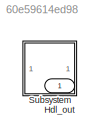
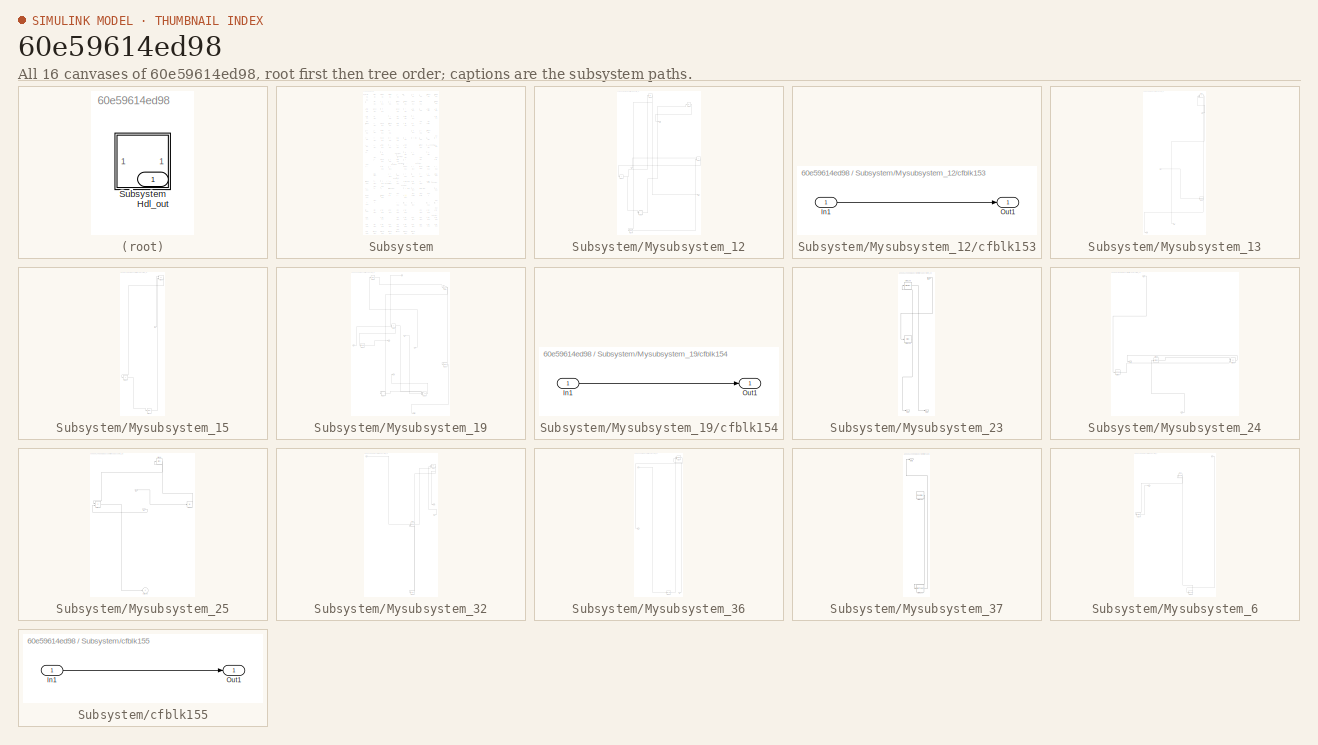
[diagram: thumbnail index - all 16 canvases of the model, root first then tree order]
MODEL slx_60e59614ed98
KIND model
CONFIG AbsTol = auto
CONFIG EnableMultiTasking = off
CONFIG FixedStep = auto
CONFIG MaxStep = auto
CONFIG MinStep = auto
CONFIG RelTol = 1e-3
CONFIG SampleTimeConstraint = Unconstrained
CONFIG SolverName = VariableStepAuto
CONFIG StartTime = 0.0
CONFIG StopTime = 10.0
BLOCK [Outport] Hdl_out
  OutDataTypeStr = uint8
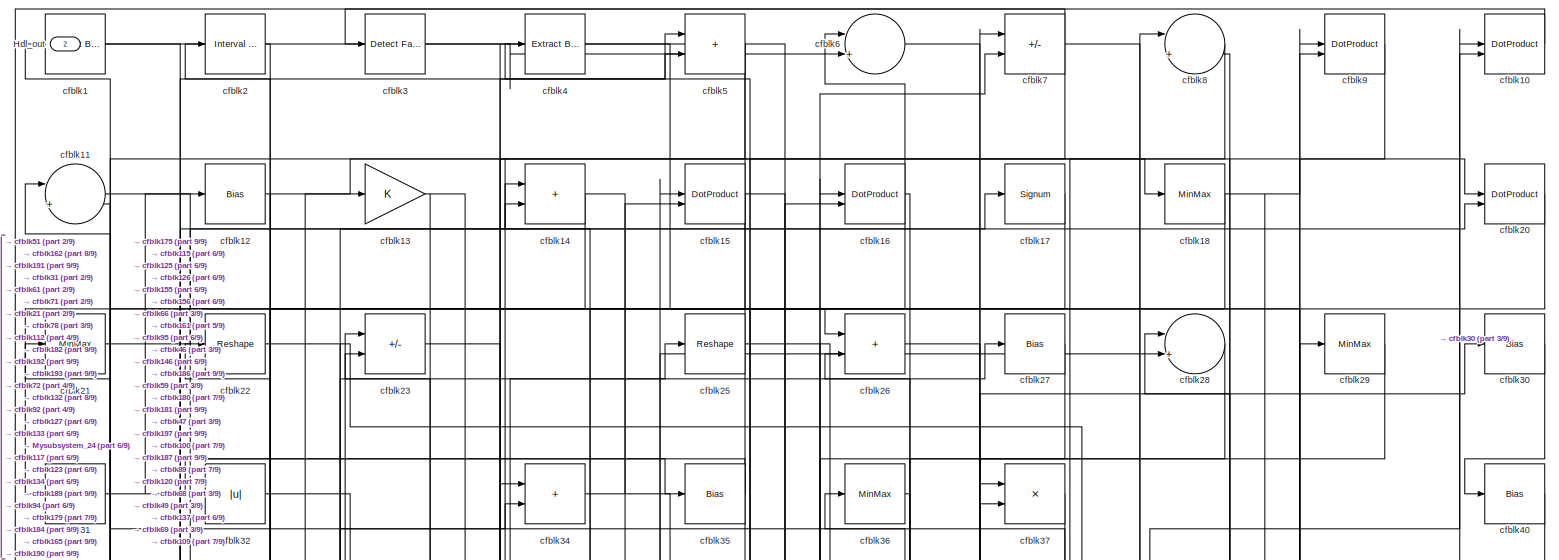
[diagram: Subsystem - part 1/9, full width, top band]
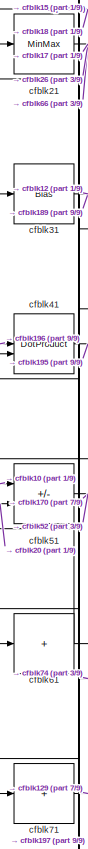
[diagram: Subsystem - part 2/9, top left region]
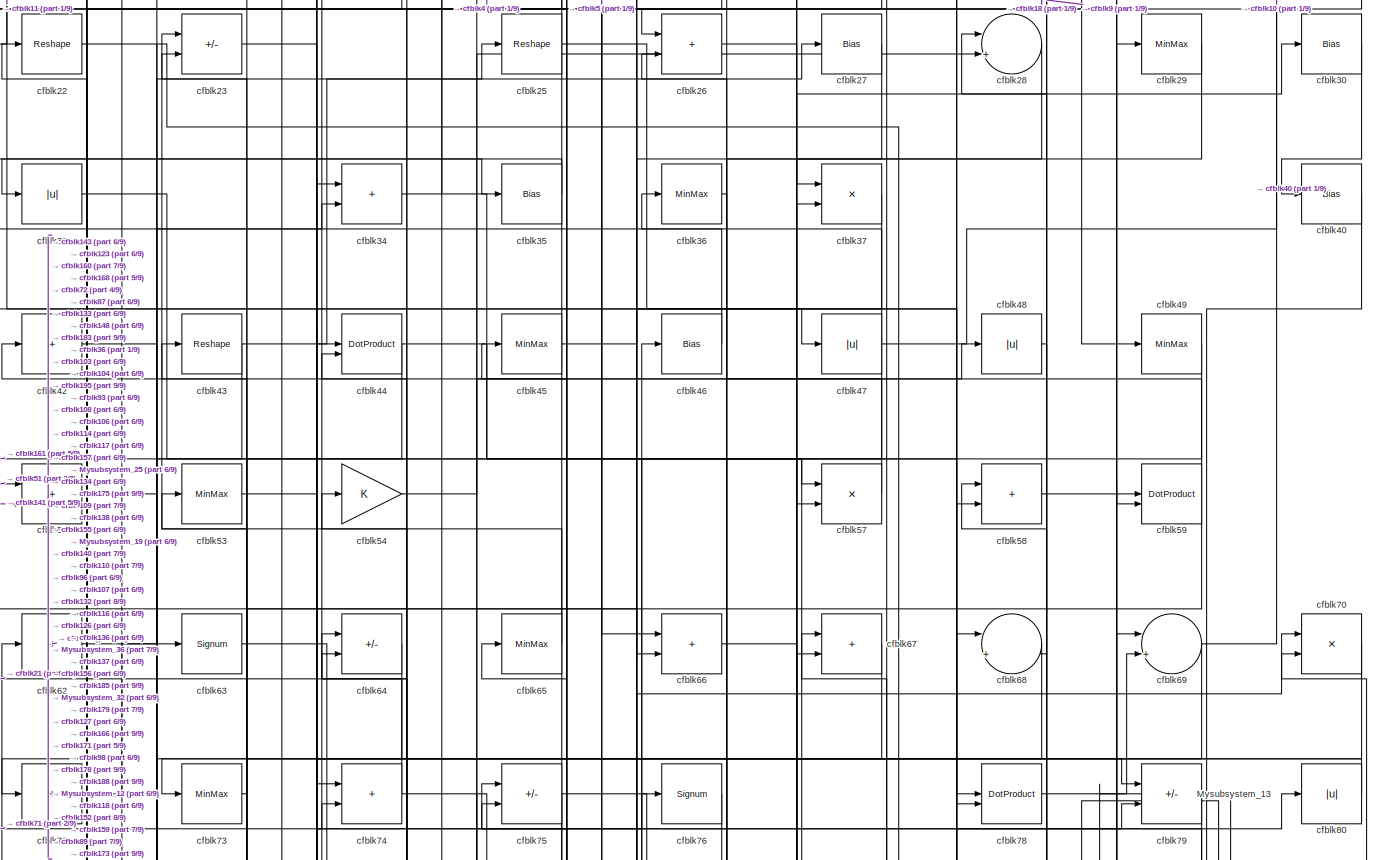
[diagram: Subsystem - part 3/9, full width, top band]
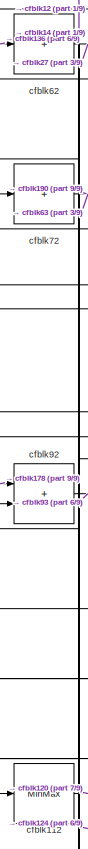
[diagram: Subsystem - part 4/9, middle left region]
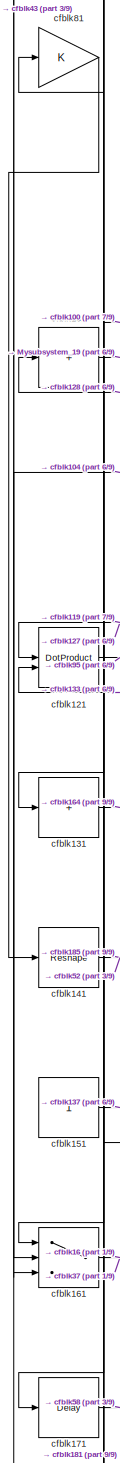
[diagram: Subsystem - part 5/9, middle left region]
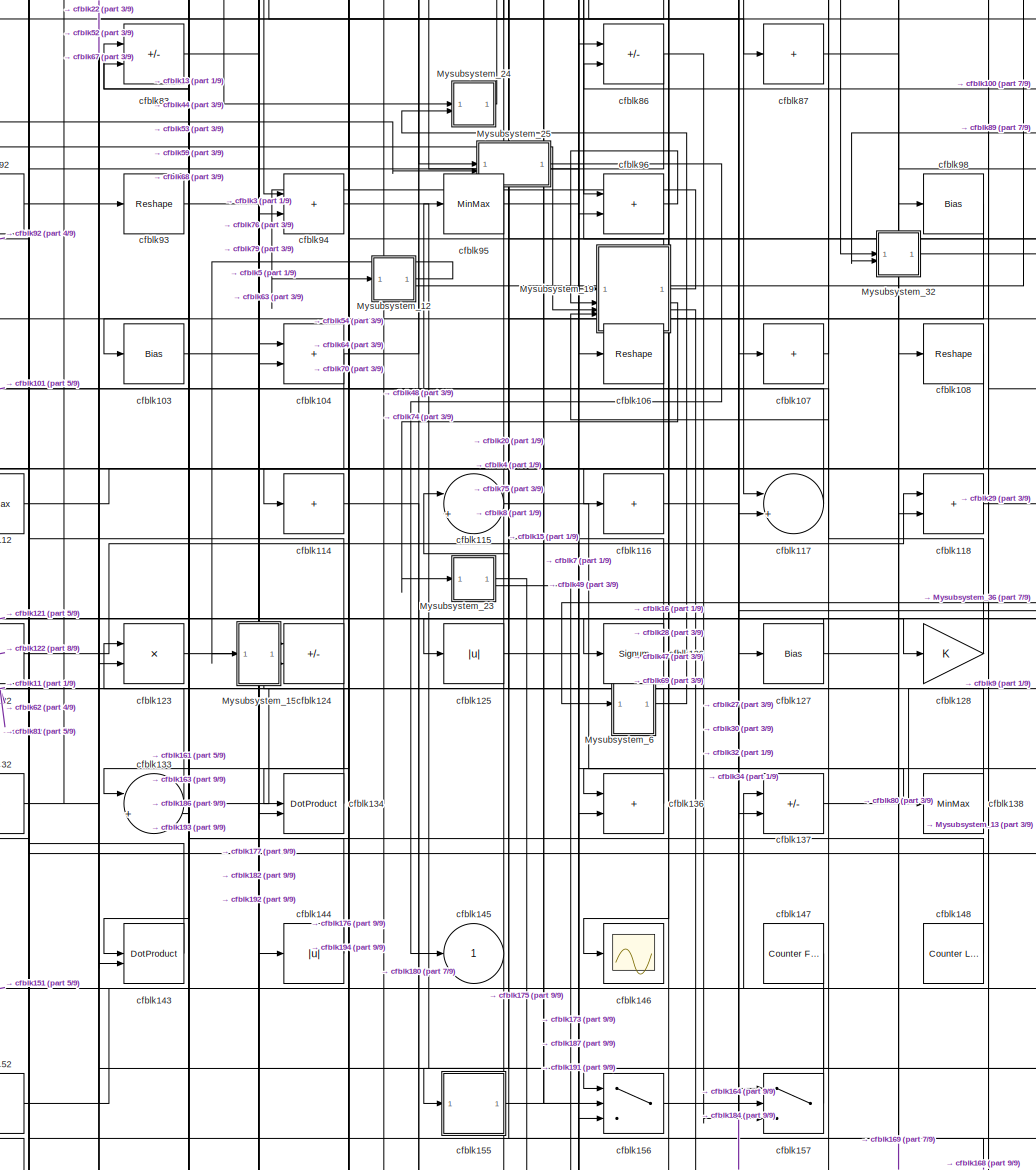
[diagram: Subsystem - part 6/9, central region]
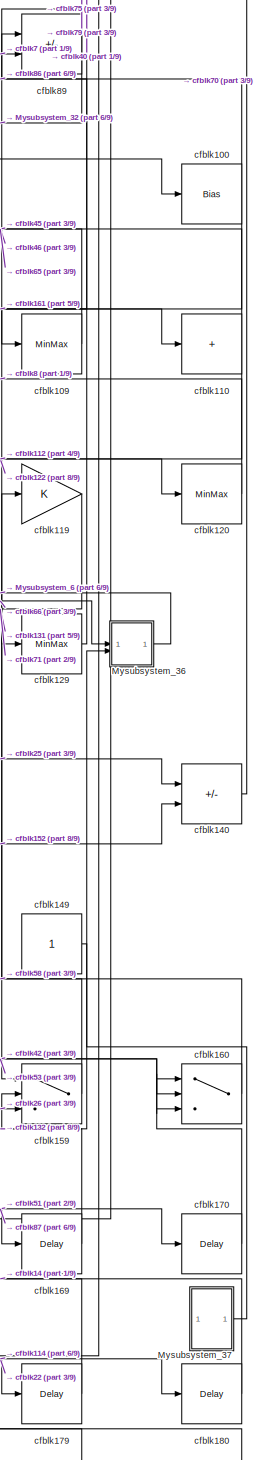
[diagram: Subsystem - part 7/9, middle right region]
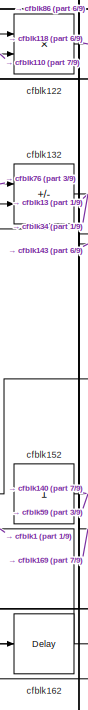
[diagram: Subsystem - part 8/9, bottom left region]
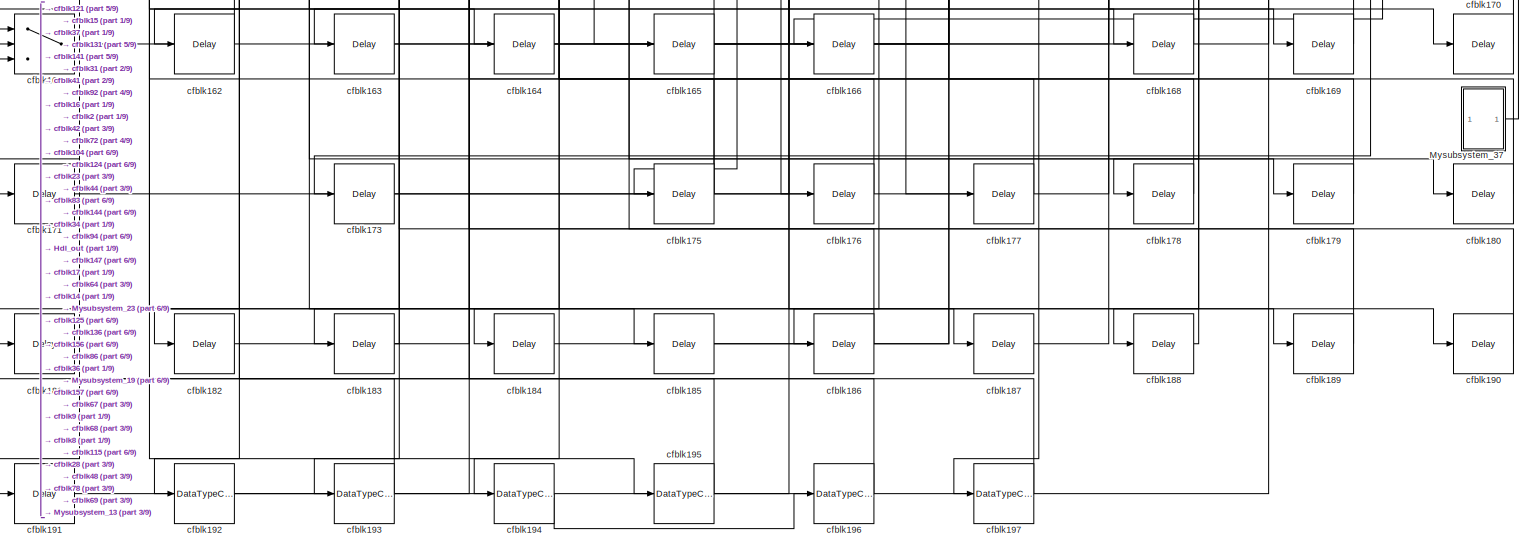
[diagram: Subsystem - part 9/9, full width, bottom band]
BLOCK [SubSystem] Subsystem
BLOCK [Outport] Subsystem/Hdl_out
  OutDataTypeStr = uint8
  Port = 2
BLOCK [SubSystem] Subsystem/Mysubsystem_12
  RTWFcnName = Mysubsystem_12
  RTWFcnNameOpts = User specified
  RTWFileNameOpts = Use function name
  RTWSystemCode = Reusable function
  TreatAsAtomicUnit = on
BLOCK [Inport] Subsystem/Mysubsystem_12/In1
BLOCK [Outport] Subsystem/Mysubsystem_12/Out1
BLOCK [Outport] Subsystem/Mysubsystem_12/Out2
  Port = 2
BLOCK [Sum] Subsystem/Mysubsystem_12/cfblk111
  IconShape = rectangular
  Inputs = +
BLOCK [SubSystem] Subsystem/Mysubsystem_12/cfblk153
  LibrarySourceBlock = hdlsllib/Ports &\nSubsystems/Subsystem
BLOCK [Inport] Subsystem/Mysubsystem_12/cfblk153/In1
BLOCK [Outport] Subsystem/Mysubsystem_12/cfblk153/Out1
BLOCK [Delay] Subsystem/Mysubsystem_12/cfblk172
  InputPortMap = u0
  SampleTime = 1
BLOCK [Abs] Subsystem/Mysubsystem_12/cfblk24
  SaturateOnIntegerOverflow = off
BLOCK [Abs] Subsystem/Mysubsystem_12/cfblk38
  SaturateOnIntegerOverflow = off
BLOCK [Sum] Subsystem/Mysubsystem_12/cfblk99
  IconShape = rectangular
BLOCK [SubSystem] Subsystem/Mysubsystem_13
  RTWFcnName = Mysubsystem_13
  RTWFcnNameOpts = User specified
  RTWFileNameOpts = Use function name
  RTWSystemCode = Reusable function
  TreatAsAtomicUnit = on
BLOCK [Inport] Subsystem/Mysubsystem_13/In1
BLOCK [Inport] Subsystem/Mysubsystem_13/In2
  Port = 2
BLOCK [Outport] Subsystem/Mysubsystem_13/Out1
BLOCK [Outport] Subsystem/Mysubsystem_13/Out2
  Port = 2
BLOCK [Reshape] Subsystem/Mysubsystem_13/cfblk139
BLOCK [Sum] Subsystem/Mysubsystem_13/cfblk19
  IconShape = rectangular
BLOCK [SubSystem] Subsystem/Mysubsystem_15
  RTWFcnName = Mysubsystem_15
  RTWFcnNameOpts = User specified
  RTWFileNameOpts = Use function name
  RTWSystemCode = Reusable function
  TreatAsAtomicUnit = on
BLOCK [Inport] Subsystem/Mysubsystem_15/In1
BLOCK [Sum] Subsystem/Mysubsystem_15/cfblk142
  IconShape = rectangular
  Inputs = +
BLOCK [Delay] Subsystem/Mysubsystem_15/cfblk174
  InputPortMap = u0
  SampleTime = 1
BLOCK [Sum] Subsystem/Mysubsystem_15/cfblk55
  IconShape = rectangular
  Inputs = +-
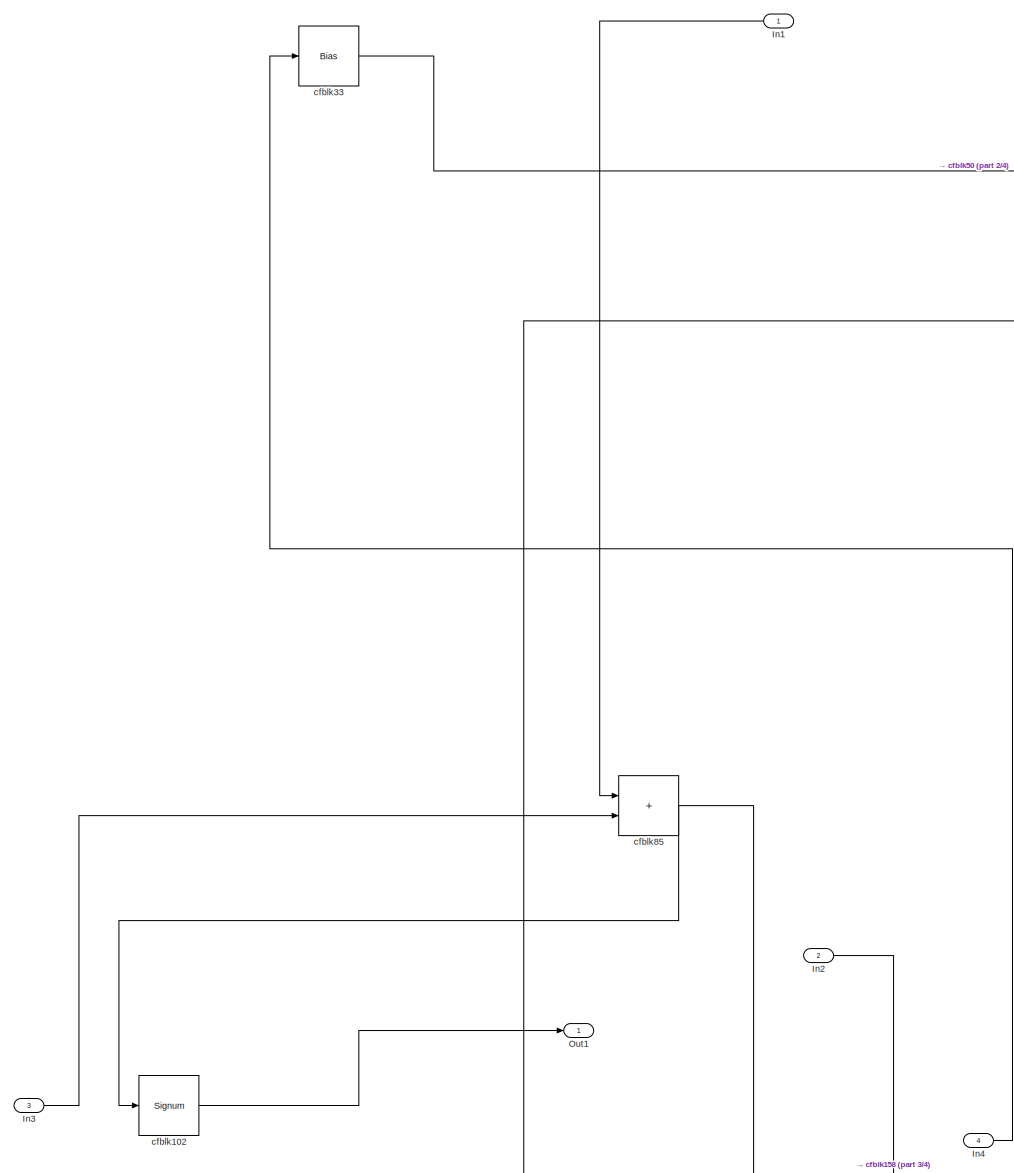
[diagram: Subsystem/Mysubsystem_19 - part 1/4, top center region]
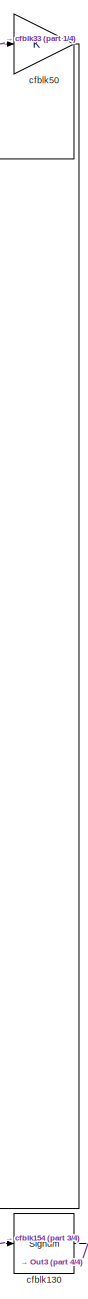
[diagram: Subsystem/Mysubsystem_19 - part 2/4, middle right region]
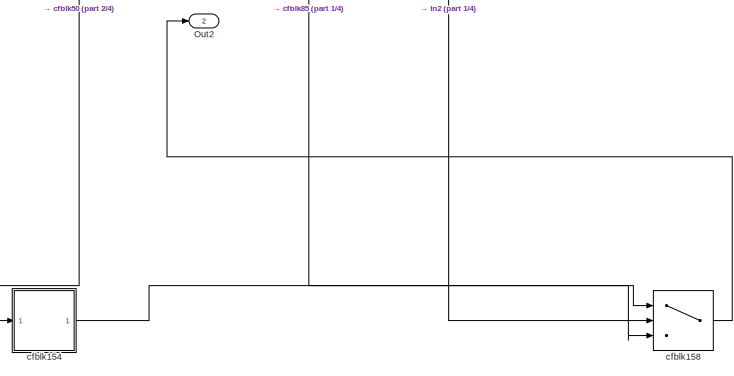
[diagram: Subsystem/Mysubsystem_19 - part 3/4, bottom center region]
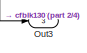
[diagram: Subsystem/Mysubsystem_19 - part 4/4, bottom center region]
BLOCK [SubSystem] Subsystem/Mysubsystem_19
  RTWFcnName = Mysubsystem_19
  RTWFcnNameOpts = User specified
  RTWFileNameOpts = Use function name
  RTWSystemCode = Reusable function
  TreatAsAtomicUnit = on
BLOCK [Inport] Subsystem/Mysubsystem_19/In1
BLOCK [Inport] Subsystem/Mysubsystem_19/In2
  Port = 2
BLOCK [Inport] Subsystem/Mysubsystem_19/In3
  Port = 3
BLOCK [Inport] Subsystem/Mysubsystem_19/In4
  Port = 4
BLOCK [Outport] Subsystem/Mysubsystem_19/Out1
BLOCK [Outport] Subsystem/Mysubsystem_19/Out2
  Port = 2
BLOCK [Outport] Subsystem/Mysubsystem_19/Out3
  Port = 3
BLOCK [Signum] Subsystem/Mysubsystem_19/cfblk102
BLOCK [Signum] Subsystem/Mysubsystem_19/cfblk130
BLOCK [SubSystem] Subsystem/Mysubsystem_19/cfblk154
  LibrarySourceBlock = hdlsllib/Ports &\nSubsystems/Subsystem
BLOCK [Inport] Subsystem/Mysubsystem_19/cfblk154/In1
BLOCK [Outport] Subsystem/Mysubsystem_19/cfblk154/Out1
BLOCK [Switch] Subsystem/Mysubsystem_19/cfblk158
  InputSameDT = off
  SaturateOnIntegerOverflow = off
BLOCK [Bias] Subsystem/Mysubsystem_19/cfblk33
  Bias = 0.0
  SaturateOnIntegerOverflow = off
BLOCK [Gain] Subsystem/Mysubsystem_19/cfblk50
BLOCK [Sum] Subsystem/Mysubsystem_19/cfblk85
  IconShape = rectangular
BLOCK [SubSystem] Subsystem/Mysubsystem_23
  RTWFcnName = Mysubsystem_23
  RTWFcnNameOpts = User specified
  RTWFileNameOpts = Use function name
  RTWSystemCode = Reusable function
  TreatAsAtomicUnit = on
BLOCK [Inport] Subsystem/Mysubsystem_23/In1
BLOCK [Outport] Subsystem/Mysubsystem_23/Out1
BLOCK [Outport] Subsystem/Mysubsystem_23/Out2
  Port = 2
BLOCK [MinMax] Subsystem/Mysubsystem_23/cfblk105
BLOCK [Bias] Subsystem/Mysubsystem_23/cfblk135
  Bias = 0.0
  SaturateOnIntegerOverflow = off
BLOCK [SubSystem] Subsystem/Mysubsystem_24
  RTWFcnName = Mysubsystem_24
  RTWFcnNameOpts = User specified
  RTWFileNameOpts = Use function name
  RTWSystemCode = Reusable function
  TreatAsAtomicUnit = on
BLOCK [Inport] Subsystem/Mysubsystem_24/In1
BLOCK [Inport] Subsystem/Mysubsystem_24/In2
  Port = 2
BLOCK [Outport] Subsystem/Mysubsystem_24/Out1
BLOCK [MinMax] Subsystem/Mysubsystem_24/cfblk84
BLOCK [Sum] Subsystem/Mysubsystem_24/cfblk90
  IconShape = rectangular
  Inputs = +-
BLOCK [Reshape] Subsystem/Mysubsystem_24/cfblk91
BLOCK [SubSystem] Subsystem/Mysubsystem_25
  RTWFcnName = Mysubsystem_25
  RTWFcnNameOpts = User specified
  RTWFileNameOpts = Use function name
  RTWSystemCode = Reusable function
  TreatAsAtomicUnit = on
BLOCK [Inport] Subsystem/Mysubsystem_25/In1
BLOCK [Inport] Subsystem/Mysubsystem_25/In2
  Port = 2
BLOCK [Outport] Subsystem/Mysubsystem_25/cfblk145
  VectorParamsAs1DForOutWhenUnconnected = off
BLOCK [Bias] Subsystem/Mysubsystem_25/cfblk56
  Bias = 0.0
  SaturateOnIntegerOverflow = off
BLOCK [Product] Subsystem/Mysubsystem_25/cfblk82
  Inputs = */
  RndMeth = Zero
  SaturateOnIntegerOverflow = on
BLOCK [Abs] Subsystem/Mysubsystem_25/cfblk88
  SaturateOnIntegerOverflow = off
BLOCK [SubSystem] Subsystem/Mysubsystem_32
  RTWFcnName = Mysubsystem_32
  RTWFcnNameOpts = User specified
  RTWFileNameOpts = Use function name
  RTWSystemCode = Reusable function
  TreatAsAtomicUnit = on
BLOCK [Inport] Subsystem/Mysubsystem_32/In1
BLOCK [Inport] Subsystem/Mysubsystem_32/In2
  Port = 2
BLOCK [Outport] Subsystem/Mysubsystem_32/Out1
BLOCK [Delay] Subsystem/Mysubsystem_32/cfblk167
  InputPortMap = u0
  SampleTime = 1
BLOCK [Sum] Subsystem/Mysubsystem_32/cfblk39
  IconShape = rectangular
  Inputs = +-
BLOCK [DotProduct] Subsystem/Mysubsystem_32/cfblk97
  OutDataTypeStr = Inherit: Inherit via internal rule
BLOCK [SubSystem] Subsystem/Mysubsystem_36
  RTWFcnName = Mysubsystem_36
  RTWFcnNameOpts = User specified
  RTWFileNameOpts = Use function name
  RTWSystemCode = Reusable function
  TreatAsAtomicUnit = on
BLOCK [Inport] Subsystem/Mysubsystem_36/In1
BLOCK [Inport] Subsystem/Mysubsystem_36/In2
  Port = 2
BLOCK [Outport] Subsystem/Mysubsystem_36/Out1
BLOCK [DataTypeConversion] Subsystem/Mysubsystem_36/cfblk199
  OutDataTypeStr = uint8
  RndMeth = Floor
  SaturateOnIntegerOverflow = off
BLOCK [DotProduct] Subsystem/Mysubsystem_36/cfblk60
  OutDataTypeStr = Inherit: Inherit via internal rule
BLOCK [SubSystem] Subsystem/Mysubsystem_37
  RTWFcnName = Mysubsystem_37
  RTWFcnNameOpts = User specified
  RTWFileNameOpts = Use function name
  RTWSystemCode = Reusable function
  TreatAsAtomicUnit = on
BLOCK [Outport] Subsystem/Mysubsystem_37/Out1
BLOCK [Reference] Subsystem/Mysubsystem_37/cfblk150  REF=hdlsllib/Sources/Counter
Limited
  SourceBlock = hdlsllib/Sources/Counter\nLimited
  SourceType = Counter Limited
BLOCK [DataTypeConversion] Subsystem/Mysubsystem_37/cfblk200
  OutDataTypeStr = uint8
  RndMeth = Floor
  SaturateOnIntegerOverflow = off
BLOCK [SubSystem] Subsystem/Mysubsystem_6
  RTWFcnName = Mysubsystem_6
  RTWFcnNameOpts = User specified
  RTWFileNameOpts = Use function name
  RTWSystemCode = Reusable function
  TreatAsAtomicUnit = on
BLOCK [Inport] Subsystem/Mysubsystem_6/In1
BLOCK [Outport] Subsystem/Mysubsystem_6/Out1
BLOCK [MinMax] Subsystem/Mysubsystem_6/cfblk113
BLOCK [DataTypeConversion] Subsystem/Mysubsystem_6/cfblk198
  OutDataTypeStr = uint8
  RndMeth = Floor
  SaturateOnIntegerOverflow = off
BLOCK [Reshape] Subsystem/Mysubsystem_6/cfblk77
BLOCK [Reference] Subsystem/cfblk1  REF=simulink/Logic and Bit
Operations/Extract Bits
  LibrarySourceBlock = hdlsllib/Logic and Bit\nOperations/Extract Bits
  SourceBlock = simulink/Logic and Bit\nOperations/Extract Bits
  SourceType = Extract Bits
BLOCK [DotProduct] Subsystem/cfblk10
  OutDataTypeStr = uint8
BLOCK [Bias] Subsystem/cfblk100
  Bias = 0.0
  SaturateOnIntegerOverflow = off
BLOCK [Sum] Subsystem/cfblk101
  IconShape = rectangular
  Inputs = +
  OutDataTypeStr = uint8
BLOCK [Bias] Subsystem/cfblk103
  Bias = 0.0
  SaturateOnIntegerOverflow = off
BLOCK [Sum] Subsystem/cfblk104
  IconShape = rectangular
  OutDataTypeStr = uint8
BLOCK [Reshape] Subsystem/cfblk106
BLOCK [Sum] Subsystem/cfblk107
  IconShape = rectangular
  Inputs = +
  OutDataTypeStr = uint8
BLOCK [Reshape] Subsystem/cfblk108
BLOCK [MinMax] Subsystem/cfblk109
  OutDataTypeStr = uint8
BLOCK [Sum] Subsystem/cfblk11
  Inputs = |++
  OutDataTypeStr = uint8
BLOCK [Sum] Subsystem/cfblk110
  IconShape = rectangular
  Inputs = +
  OutDataTypeStr = uint8
BLOCK [MinMax] Subsystem/cfblk112
  OutDataTypeStr = uint8
BLOCK [Sum] Subsystem/cfblk114
  IconShape = rectangular
  Inputs = +
  OutDataTypeStr = uint8
BLOCK [Sum] Subsystem/cfblk115
  Inputs = |++
  OutDataTypeStr = uint8
BLOCK [Sum] Subsystem/cfblk116
  IconShape = rectangular
  Inputs = +
  OutDataTypeStr = uint8
BLOCK [Sum] Subsystem/cfblk117
  Inputs = |++
  OutDataTypeStr = uint8
BLOCK [Sum] Subsystem/cfblk118
  IconShape = rectangular
  OutDataTypeStr = uint8
BLOCK [Gain] Subsystem/cfblk119
  OutDataTypeStr = uint8
BLOCK [Bias] Subsystem/cfblk12
  Bias = 0.0
  SaturateOnIntegerOverflow = off
BLOCK [MinMax] Subsystem/cfblk120
  OutDataTypeStr = uint8
BLOCK [DotProduct] Subsystem/cfblk121
  OutDataTypeStr = uint8
BLOCK [Product] Subsystem/cfblk122
  Inputs = */
  OutDataTypeStr = uint8
  RndMeth = Zero
  SaturateOnIntegerOverflow = on
BLOCK [Product] Subsystem/cfblk123
  Inputs = */
  OutDataTypeStr = uint8
  RndMeth = Zero
  SaturateOnIntegerOverflow = on
BLOCK [Sum] Subsystem/cfblk124
  IconShape = rectangular
  Inputs = +-
  OutDataTypeStr = uint8
BLOCK [Abs] Subsystem/cfblk125
  OutDataTypeStr = uint8
  SaturateOnIntegerOverflow = off
BLOCK [Signum] Subsystem/cfblk126
BLOCK [Bias] Subsystem/cfblk127
  Bias = 0.0
  SaturateOnIntegerOverflow = off
BLOCK [Gain] Subsystem/cfblk128
  OutDataTypeStr = uint8
BLOCK [MinMax] Subsystem/cfblk129
  OutDataTypeStr = uint8
BLOCK [Gain] Subsystem/cfblk13
  OutDataTypeStr = uint8
BLOCK [Sum] Subsystem/cfblk131
  IconShape = rectangular
  Inputs = +
  OutDataTypeStr = uint8
BLOCK [Sum] Subsystem/cfblk132
  IconShape = rectangular
  Inputs = +-
  OutDataTypeStr = uint8
BLOCK [Sum] Subsystem/cfblk133
  Inputs = |++
  OutDataTypeStr = uint8
BLOCK [DotProduct] Subsystem/cfblk134
  OutDataTypeStr = uint8
BLOCK [Sum] Subsystem/cfblk136
  IconShape = rectangular
  OutDataTypeStr = uint8
BLOCK [Sum] Subsystem/cfblk137
  IconShape = rectangular
  Inputs = +-
  OutDataTypeStr = uint8
BLOCK [MinMax] Subsystem/cfblk138
  OutDataTypeStr = uint8
BLOCK [Sum] Subsystem/cfblk14
  IconShape = rectangular
  OutDataTypeStr = uint8
BLOCK [Sum] Subsystem/cfblk140
  IconShape = rectangular
  Inputs = +-
  OutDataTypeStr = uint8
BLOCK [Reshape] Subsystem/cfblk141
BLOCK [DotProduct] Subsystem/cfblk143
  OutDataTypeStr = uint8
BLOCK [Abs] Subsystem/cfblk144
  OutDataTypeStr = uint8
  SaturateOnIntegerOverflow = off
BLOCK [Outport] Subsystem/cfblk145
  OutDataTypeStr = uint8
  VectorParamsAs1DForOutWhenUnconnected = off
BLOCK [Scope] Subsystem/cfblk146
  Floating = off
  NumInputPorts = 1
  ScopeSpecificationString = Simulink.scopes.TimeScopeBlockCfg('CurrentConfiguration', extmgr.ConfigurationSet(extmgr.Configuration('Core','General UI',true),extmgr.Configuration('Core','Source UI',true),extmgr.Configuration('Sources','WiredSimulink',true,'DataLoggingSaveFormat','Array','DataLoggingLimitDataPoints',true,'DataLoggingDecimation','1'),extmgr.Configuration('Visuals','Time Domain',true,'DisplayPropertyDefaults',st...<+829ch>
BLOCK [Reference] Subsystem/cfblk147  REF=hdlsllib/Sources/Counter
Free-Running
  SourceBlock = hdlsllib/Sources/Counter\nFree-Running
  SourceType = Counter Free-Running
BLOCK [Reference] Subsystem/cfblk148  REF=hdlsllib/Sources/Counter
Limited
  SourceBlock = hdlsllib/Sources/Counter\nLimited
  SourceType = Counter Limited
BLOCK [Constant] Subsystem/cfblk149
  OutDataTypeStr = uint8
  SampleTime = -1
BLOCK [DotProduct] Subsystem/cfblk15
  OutDataTypeStr = uint8
BLOCK [Constant] Subsystem/cfblk151
  OutDataTypeStr = uint8
  SampleTime = -1
BLOCK [Constant] Subsystem/cfblk152
  OutDataTypeStr = uint8
  SampleTime = -1
BLOCK [SubSystem] Subsystem/cfblk155
  LibrarySourceBlock = hdlsllib/Ports &\nSubsystems/Subsystem
BLOCK [Inport] Subsystem/cfblk155/In1
BLOCK [Outport] Subsystem/cfblk155/Out1
BLOCK [Switch] Subsystem/cfblk156
  InputSameDT = off
  OutDataTypeStr = uint8
  SaturateOnIntegerOverflow = off
BLOCK [Switch] Subsystem/cfblk157
  InputSameDT = off
  OutDataTypeStr = uint8
  SaturateOnIntegerOverflow = off
BLOCK [Switch] Subsystem/cfblk159
  InputSameDT = off
  OutDataTypeStr = uint8
  SaturateOnIntegerOverflow = off
BLOCK [DotProduct] Subsystem/cfblk16
  OutDataTypeStr = uint8
BLOCK [Switch] Subsystem/cfblk160
  InputSameDT = off
  OutDataTypeStr = uint8
  SaturateOnIntegerOverflow = off
BLOCK [Switch] Subsystem/cfblk161
  InputSameDT = off
  OutDataTypeStr = uint8
  SaturateOnIntegerOverflow = off
BLOCK [Delay] Subsystem/cfblk162
  InputPortMap = u0
  SampleTime = 1
BLOCK [Delay] Subsystem/cfblk163
  InputPortMap = u0
  SampleTime = 1
BLOCK [Delay] Subsystem/cfblk164
  InputPortMap = u0
  SampleTime = 1
BLOCK [Delay] Subsystem/cfblk165
  InputPortMap = u0
  SampleTime = 1
BLOCK [Delay] Subsystem/cfblk166
  InputPortMap = u0
  SampleTime = 1
BLOCK [Delay] Subsystem/cfblk168
  InputPortMap = u0
  SampleTime = 1
BLOCK [Delay] Subsystem/cfblk169
  InputPortMap = u0
  SampleTime = 1
BLOCK [Signum] Subsystem/cfblk17
BLOCK [Delay] Subsystem/cfblk170
  InputPortMap = u0
  SampleTime = 1
BLOCK [Delay] Subsystem/cfblk171
  InputPortMap = u0
  SampleTime = 1
BLOCK [Delay] Subsystem/cfblk173
  InputPortMap = u0
  SampleTime = 1
BLOCK [Delay] Subsystem/cfblk175
  InputPortMap = u0
  SampleTime = 1
BLOCK [Delay] Subsystem/cfblk176
  InputPortMap = u0
  SampleTime = 1
BLOCK [Delay] Subsystem/cfblk177
  InputPortMap = u0
  SampleTime = 1
BLOCK [Delay] Subsystem/cfblk178
  InputPortMap = u0
  SampleTime = 1
BLOCK [Delay] Subsystem/cfblk179
  InputPortMap = u0
  SampleTime = 1
BLOCK [MinMax] Subsystem/cfblk18
  OutDataTypeStr = uint8
BLOCK [Delay] Subsystem/cfblk180
  InputPortMap = u0
  SampleTime = 1
BLOCK [Delay] Subsystem/cfblk181
  InputPortMap = u0
  SampleTime = 1
BLOCK [Delay] Subsystem/cfblk182
  InputPortMap = u0
  SampleTime = 1
BLOCK [Delay] Subsystem/cfblk183
  InputPortMap = u0
  SampleTime = 1
BLOCK [Delay] Subsystem/cfblk184
  InputPortMap = u0
  SampleTime = 1
BLOCK [Delay] Subsystem/cfblk185
  InputPortMap = u0
  SampleTime = 1
BLOCK [Delay] Subsystem/cfblk186
  InputPortMap = u0
  SampleTime = 1
BLOCK [Delay] Subsystem/cfblk187
  InputPortMap = u0
  SampleTime = 1
BLOCK [Delay] Subsystem/cfblk188
  InputPortMap = u0
  SampleTime = 1
BLOCK [Delay] Subsystem/cfblk189
  InputPortMap = u0
  SampleTime = 1
BLOCK [Delay] Subsystem/cfblk190
  InputPortMap = u0
  SampleTime = 1
BLOCK [Delay] Subsystem/cfblk191
  InputPortMap = u0
  SampleTime = 1
BLOCK [DataTypeConversion] Subsystem/cfblk192
  OutDataTypeStr = uint8
  RndMeth = Floor
  SaturateOnIntegerOverflow = off
BLOCK [DataTypeConversion] Subsystem/cfblk193
  OutDataTypeStr = uint8
  RndMeth = Floor
  SaturateOnIntegerOverflow = off
BLOCK [DataTypeConversion] Subsystem/cfblk194
  OutDataTypeStr = uint8
  RndMeth = Floor
  SaturateOnIntegerOverflow = off
BLOCK [DataTypeConversion] Subsystem/cfblk195
  OutDataTypeStr = uint8
  RndMeth = Floor
  SaturateOnIntegerOverflow = off
BLOCK [DataTypeConversion] Subsystem/cfblk196
  OutDataTypeStr = uint8
  RndMeth = Floor
  SaturateOnIntegerOverflow = off
BLOCK [DataTypeConversion] Subsystem/cfblk197
  OutDataTypeStr = uint8
  RndMeth = Floor
  SaturateOnIntegerOverflow = off
BLOCK [Reference] Subsystem/cfblk2  REF=hdlsllib/Logic and Bit
Operations/Interval Test
  SourceBlock = hdlsllib/Logic and Bit\nOperations/Interval Test
  SourceType = Interval Test
BLOCK [DotProduct] Subsystem/cfblk20
  OutDataTypeStr = uint8
BLOCK [MinMax] Subsystem/cfblk21
  OutDataTypeStr = uint8
BLOCK [Reshape] Subsystem/cfblk22
BLOCK [Sum] Subsystem/cfblk23
  IconShape = rectangular
  Inputs = +-
  OutDataTypeStr = uint8
BLOCK [Reshape] Subsystem/cfblk25
BLOCK [Sum] Subsystem/cfblk26
  IconShape = rectangular
  OutDataTypeStr = uint8
BLOCK [Bias] Subsystem/cfblk27
  Bias = 0.0
  SaturateOnIntegerOverflow = off
BLOCK [Sum] Subsystem/cfblk28
  Inputs = |++
  OutDataTypeStr = uint8
BLOCK [MinMax] Subsystem/cfblk29
  OutDataTypeStr = uint8
BLOCK [Reference] Subsystem/cfblk3  REF=hdlsllib/Logic and Bit
Operations/Detect Fall
Nonpositive
  SourceBlock = hdlsllib/Logic and Bit\nOperations/Detect Fall\nNonpositive
  SourceType = Detect Fall Nonpositive
BLOCK [Bias] Subsystem/cfblk30
  Bias = 0.0
  SaturateOnIntegerOverflow = off
BLOCK [Bias] Subsystem/cfblk31
  Bias = 0.0
  SaturateOnIntegerOverflow = off
BLOCK [Abs] Subsystem/cfblk32
  OutDataTypeStr = uint8
  SaturateOnIntegerOverflow = off
BLOCK [Sum] Subsystem/cfblk34
  IconShape = rectangular
  OutDataTypeStr = uint8
BLOCK [Bias] Subsystem/cfblk35
  Bias = 0.0
  SaturateOnIntegerOverflow = off
BLOCK [MinMax] Subsystem/cfblk36
  OutDataTypeStr = uint8
BLOCK [Product] Subsystem/cfblk37
  Inputs = */
  OutDataTypeStr = uint8
  RndMeth = Zero
  SaturateOnIntegerOverflow = on
BLOCK [Reference] Subsystem/cfblk4  REF=simulink/Logic and Bit
Operations/Extract Bits
  LibrarySourceBlock = hdlsllib/Logic and Bit\nOperations/Extract Bits
  SourceBlock = simulink/Logic and Bit\nOperations/Extract Bits
  SourceType = Extract Bits
BLOCK [Bias] Subsystem/cfblk40
  Bias = 0.0
  SaturateOnIntegerOverflow = off
BLOCK [DotProduct] Subsystem/cfblk41
  OutDataTypeStr = uint8
BLOCK [Sum] Subsystem/cfblk42
  IconShape = rectangular
  Inputs = +
  OutDataTypeStr = uint8
BLOCK [Reshape] Subsystem/cfblk43
BLOCK [DotProduct] Subsystem/cfblk44
  OutDataTypeStr = uint8
BLOCK [MinMax] Subsystem/cfblk45
  OutDataTypeStr = uint8
BLOCK [Bias] Subsystem/cfblk46
  Bias = 0.0
  SaturateOnIntegerOverflow = off
BLOCK [Abs] Subsystem/cfblk47
  OutDataTypeStr = uint8
  SaturateOnIntegerOverflow = off
BLOCK [Abs] Subsystem/cfblk48
  OutDataTypeStr = uint8
  SaturateOnIntegerOverflow = off
BLOCK [MinMax] Subsystem/cfblk49
  OutDataTypeStr = uint8
BLOCK [Sum] Subsystem/cfblk5
  IconShape = rectangular
  OutDataTypeStr = uint8
BLOCK [Sum] Subsystem/cfblk51
  IconShape = rectangular
  Inputs = +-
  OutDataTypeStr = uint8
BLOCK [Sum] Subsystem/cfblk52
  IconShape = rectangular
  OutDataTypeStr = uint8
BLOCK [MinMax] Subsystem/cfblk53
  OutDataTypeStr = uint8
BLOCK [Gain] Subsystem/cfblk54
  OutDataTypeStr = uint8
BLOCK [Product] Subsystem/cfblk57
  Inputs = */
  OutDataTypeStr = uint8
  RndMeth = Zero
  SaturateOnIntegerOverflow = on
BLOCK [Sum] Subsystem/cfblk58
  IconShape = rectangular
  OutDataTypeStr = uint8
BLOCK [DotProduct] Subsystem/cfblk59
  OutDataTypeStr = uint8
BLOCK [Sum] Subsystem/cfblk6
  Inputs = |++
  OutDataTypeStr = uint8
BLOCK [Sum] Subsystem/cfblk61
  IconShape = rectangular
  Inputs = +
  OutDataTypeStr = uint8
BLOCK [Sum] Subsystem/cfblk62
  IconShape = rectangular
  Inputs = +
  OutDataTypeStr = uint8
BLOCK [Signum] Subsystem/cfblk63
BLOCK [Sum] Subsystem/cfblk64
  IconShape = rectangular
  Inputs = +-
  OutDataTypeStr = uint8
BLOCK [MinMax] Subsystem/cfblk65
  OutDataTypeStr = uint8
BLOCK [Sum] Subsystem/cfblk66
  IconShape = rectangular
  OutDataTypeStr = uint8
BLOCK [Sum] Subsystem/cfblk67
  IconShape = rectangular
  OutDataTypeStr = uint8
BLOCK [Sum] Subsystem/cfblk68
  Inputs = |++
  OutDataTypeStr = uint8
BLOCK [Sum] Subsystem/cfblk69
  Inputs = |++
  OutDataTypeStr = uint8
BLOCK [Sum] Subsystem/cfblk7
  IconShape = rectangular
  Inputs = +-
  OutDataTypeStr = uint8
BLOCK [Product] Subsystem/cfblk70
  Inputs = */
  OutDataTypeStr = uint8
  RndMeth = Zero
  SaturateOnIntegerOverflow = on
BLOCK [Sum] Subsystem/cfblk71
  IconShape = rectangular
  Inputs = +
  OutDataTypeStr = uint8
BLOCK [Sum] Subsystem/cfblk72
  IconShape = rectangular
  Inputs = +
  OutDataTypeStr = uint8
BLOCK [MinMax] Subsystem/cfblk73
  OutDataTypeStr = uint8
BLOCK [Sum] Subsystem/cfblk74
  IconShape = rectangular
  OutDataTypeStr = uint8
BLOCK [Sum] Subsystem/cfblk75
  IconShape = rectangular
  Inputs = +-
  OutDataTypeStr = uint8
BLOCK [Signum] Subsystem/cfblk76
BLOCK [DotProduct] Subsystem/cfblk78
  OutDataTypeStr = uint8
BLOCK [Sum] Subsystem/cfblk79
  IconShape = rectangular
  Inputs = +-
  OutDataTypeStr = uint8
BLOCK [Sum] Subsystem/cfblk8
  Inputs = |++
  OutDataTypeStr = uint8
BLOCK [Abs] Subsystem/cfblk80
  OutDataTypeStr = uint8
  SaturateOnIntegerOverflow = off
BLOCK [Gain] Subsystem/cfblk81
  OutDataTypeStr = uint8
BLOCK [Sum] Subsystem/cfblk83
  IconShape = rectangular
  Inputs = +-
  OutDataTypeStr = uint8
BLOCK [Sum] Subsystem/cfblk86
  IconShape = rectangular
  Inputs = +-
  OutDataTypeStr = uint8
BLOCK [Sum] Subsystem/cfblk87
  IconShape = rectangular
  Inputs = +
  OutDataTypeStr = uint8
BLOCK [Sum] Subsystem/cfblk89
  IconShape = rectangular
  Inputs = +-
  OutDataTypeStr = uint8
BLOCK [DotProduct] Subsystem/cfblk9
  OutDataTypeStr = uint8
BLOCK [Sum] Subsystem/cfblk92
  IconShape = rectangular
  OutDataTypeStr = uint8
BLOCK [Reshape] Subsystem/cfblk93
BLOCK [Sum] Subsystem/cfblk94
  IconShape = rectangular
  OutDataTypeStr = uint8
BLOCK [MinMax] Subsystem/cfblk95
  OutDataTypeStr = uint8
BLOCK [Sum] Subsystem/cfblk96
  IconShape = rectangular
  OutDataTypeStr = uint8
BLOCK [Bias] Subsystem/cfblk98
  Bias = 0.0
  SaturateOnIntegerOverflow = off
LINE Subsystem/Mysubsystem_12/In1:1 -> Subsystem/Mysubsystem_12/cfblk99:1
NET Subsystem/Mysubsystem_12/cfblk111:1 -> Subsystem/Mysubsystem_12/cfblk153:1, Subsystem/Mysubsystem_12/cfblk24:1
LINE Subsystem/Mysubsystem_12/cfblk153/In1:1 -> Subsystem/Mysubsystem_12/cfblk153/Out1:1
LINE Subsystem/Mysubsystem_12/cfblk153:1 -> Subsystem/Mysubsystem_12/cfblk38:1
LINE Subsystem/Mysubsystem_12/cfblk172:1 -> Subsystem/Mysubsystem_12/cfblk99:2
NET Subsystem/Mysubsystem_12/cfblk24:1 -> Subsystem/Mysubsystem_12/Out2:1, Subsystem/Mysubsystem_12/cfblk172:1
LINE Subsystem/Mysubsystem_12/cfblk38:1 -> Subsystem/Mysubsystem_12/Out1:1
LINE Subsystem/Mysubsystem_12/cfblk99:1 -> Subsystem/Mysubsystem_12/cfblk111:1
LINE Subsystem/Mysubsystem_12:1 -> Subsystem/Mysubsystem_15:1
LINE Subsystem/Mysubsystem_12:2 -> Subsystem/Mysubsystem_13:2
LINE Subsystem/Mysubsystem_13/In1:1 -> Subsystem/Mysubsystem_13/cfblk19:2
LINE Subsystem/Mysubsystem_13/In2:1 -> Subsystem/Mysubsystem_13/cfblk139:1
NET Subsystem/Mysubsystem_13/cfblk139:1 -> Subsystem/Mysubsystem_13/Out2:1, Subsystem/Mysubsystem_13/cfblk19:1
LINE Subsystem/Mysubsystem_13/cfblk19:1 -> Subsystem/Mysubsystem_13/Out1:1
LINE Subsystem/Mysubsystem_13:1 -> Subsystem/cfblk166:1
LINE Subsystem/Mysubsystem_13:2 -> Subsystem/cfblk173:1
LINE Subsystem/Mysubsystem_15/In1:1 -> Subsystem/Mysubsystem_15/cfblk55:1
LINE Subsystem/Mysubsystem_15/cfblk142:1 -> Subsystem/Mysubsystem_15/cfblk174:1
LINE Subsystem/Mysubsystem_15/cfblk174:1 -> Subsystem/Mysubsystem_15/cfblk55:2
LINE Subsystem/Mysubsystem_15/cfblk55:1 -> Subsystem/Mysubsystem_15/cfblk142:1
LINE Subsystem/Mysubsystem_19/In1:1 -> Subsystem/Mysubsystem_19/cfblk85:1
LINE Subsystem/Mysubsystem_19/In2:1 -> Subsystem/Mysubsystem_19/cfblk158:2
LINE Subsystem/Mysubsystem_19/In3:1 -> Subsystem/Mysubsystem_19/cfblk85:2
LINE Subsystem/Mysubsystem_19/In4:1 -> Subsystem/Mysubsystem_19/cfblk33:1
LINE Subsystem/Mysubsystem_19/cfblk102:1 -> Subsystem/Mysubsystem_19/Out1:1
LINE Subsystem/Mysubsystem_19/cfblk130:1 -> Subsystem/Mysubsystem_19/Out3:1
LINE Subsystem/Mysubsystem_19/cfblk154/In1:1 -> Subsystem/Mysubsystem_19/cfblk154/Out1:1
LINE Subsystem/Mysubsystem_19/cfblk154:1 -> Subsystem/Mysubsystem_19/cfblk158:1
LINE Subsystem/Mysubsystem_19/cfblk158:1 -> Subsystem/Mysubsystem_19/Out2:1
LINE Subsystem/Mysubsystem_19/cfblk33:1 -> Subsystem/Mysubsystem_19/cfblk50:1
NET Subsystem/Mysubsystem_19/cfblk50:1 -> Subsystem/Mysubsystem_19/cfblk130:1, Subsystem/Mysubsystem_19/cfblk154:1
NET Subsystem/Mysubsystem_19/cfblk85:1 -> Subsystem/Mysubsystem_19/cfblk102:1, Subsystem/Mysubsystem_19/cfblk158:3
LINE Subsystem/Mysubsystem_19:1 -> Subsystem/Mysubsystem_12:1
LINE Subsystem/Mysubsystem_19:2 -> Subsystem/Mysubsystem_23:1
LINE Subsystem/Mysubsystem_19:3 -> Subsystem/cfblk177:1
LINE Subsystem/Mysubsystem_23/In1:1 -> Subsystem/Mysubsystem_23/cfblk135:1
LINE Subsystem/Mysubsystem_23/cfblk105:1 -> Subsystem/Mysubsystem_23/Out2:1
NET Subsystem/Mysubsystem_23/cfblk135:1 -> Subsystem/Mysubsystem_23/Out1:1, Subsystem/Mysubsystem_23/cfblk105:1
LINE Subsystem/Mysubsystem_23:1 -> Subsystem/cfblk175:1
LINE Subsystem/Mysubsystem_23:2 -> Subsystem/cfblk176:1
LINE Subsystem/Mysubsystem_24/In1:1 -> Subsystem/Mysubsystem_24/cfblk91:1
LINE Subsystem/Mysubsystem_24/In2:1 -> Subsystem/Mysubsystem_24/cfblk84:1
LINE Subsystem/Mysubsystem_24/cfblk84:1 -> Subsystem/Mysubsystem_24/cfblk90:1
LINE Subsystem/Mysubsystem_24/cfblk90:1 -> Subsystem/Mysubsystem_24/Out1:1
LINE Subsystem/Mysubsystem_24/cfblk91:1 -> Subsystem/Mysubsystem_24/cfblk90:2
LINE Subsystem/Mysubsystem_24:1 -> Subsystem/Mysubsystem_25:2
LINE Subsystem/Mysubsystem_25/In1:1 -> Subsystem/Mysubsystem_25/cfblk88:1
LINE Subsystem/Mysubsystem_25/In2:1 -> Subsystem/Mysubsystem_25/cfblk82:2
LINE Subsystem/Mysubsystem_25/cfblk56:1 -> Subsystem/Mysubsystem_25/cfblk82:1
LINE Subsystem/Mysubsystem_25/cfblk82:1 -> Subsystem/Mysubsystem_25/cfblk145:1
LINE Subsystem/Mysubsystem_25/cfblk88:1 -> Subsystem/Mysubsystem_25/cfblk56:1
LINE Subsystem/Mysubsystem_25:1 -> Subsystem/cfblk145:1
LINE Subsystem/Mysubsystem_32/In1:1 -> Subsystem/Mysubsystem_32/cfblk97:1
LINE Subsystem/Mysubsystem_32/In2:1 -> Subsystem/Mysubsystem_32/cfblk39:2
LINE Subsystem/Mysubsystem_32/cfblk167:1 -> Subsystem/Mysubsystem_32/cfblk97:2
NET Subsystem/Mysubsystem_32/cfblk39:1 -> Subsystem/Mysubsystem_32/Out1:1, Subsystem/Mysubsystem_32/cfblk167:1
LINE Subsystem/Mysubsystem_32/cfblk97:1 -> Subsystem/Mysubsystem_32/cfblk39:1
LINE Subsystem/Mysubsystem_32:1 -> Subsystem/Mysubsystem_13:1
LINE Subsystem/Mysubsystem_36/In1:1 -> Subsystem/Mysubsystem_36/cfblk199:1
LINE Subsystem/Mysubsystem_36/In2:1 -> Subsystem/Mysubsystem_36/cfblk60:2
LINE Subsystem/Mysubsystem_36/cfblk199:1 -> Subsystem/Mysubsystem_36/cfblk60:1
LINE Subsystem/Mysubsystem_36/cfblk60:1 -> Subsystem/Mysubsystem_36/Out1:1
LINE Subsystem/Mysubsystem_36:1 -> Subsystem/Mysubsystem_6:1
LINE Subsystem/Mysubsystem_37/cfblk150:1 -> Subsystem/Mysubsystem_37/cfblk200:1
LINE Subsystem/Mysubsystem_37/cfblk200:1 -> Subsystem/Mysubsystem_37/Out1:1
LINE Subsystem/Mysubsystem_37:1 -> Subsystem/Mysubsystem_36:2
LINE Subsystem/Mysubsystem_6/In1:1 -> Subsystem/Mysubsystem_6/cfblk198:1
LINE Subsystem/Mysubsystem_6/cfblk113:1 -> Subsystem/Mysubsystem_6/Out1:1
LINE Subsystem/Mysubsystem_6/cfblk198:1 -> Subsystem/Mysubsystem_6/cfblk77:1
LINE Subsystem/Mysubsystem_6/cfblk77:1 -> Subsystem/Mysubsystem_6/cfblk113:1
LINE Subsystem/Mysubsystem_6:1 -> Subsystem/Mysubsystem_24:2
NET Subsystem/cfblk100:1 -> Subsystem/cfblk161:1, Subsystem/cfblk86:2
NET Subsystem/cfblk101:1 -> Subsystem/Mysubsystem_19:3, Subsystem/cfblk171:1
LINE Subsystem/cfblk103:1 -> Subsystem/cfblk76:1
NET Subsystem/cfblk104:1 -> Subsystem/cfblk161:3, Subsystem/cfblk193:1, Subsystem/cfblk48:1
NET Subsystem/cfblk106:1 -> Subsystem/cfblk143:1, Subsystem/cfblk44:2
LINE Subsystem/cfblk107:1 -> Subsystem/cfblk67:1
LINE Subsystem/cfblk108:1 -> Subsystem/cfblk143:2
NET Subsystem/cfblk109:1 -> Subsystem/cfblk45:1, Subsystem/cfblk65:1
LINE Subsystem/cfblk10:1 -> Subsystem/cfblk51:1
NET Subsystem/cfblk110:1 -> Subsystem/cfblk122:2, Subsystem/cfblk46:1
LINE Subsystem/cfblk112:1 -> Subsystem/cfblk120:1
LINE Subsystem/cfblk114:1 -> Subsystem/cfblk180:1
LINE Subsystem/cfblk115:1 -> Subsystem/cfblk138:1
LINE Subsystem/cfblk116:1 -> Subsystem/cfblk128:1
LINE Subsystem/cfblk117:1 -> Subsystem/cfblk64:1
LINE Subsystem/cfblk118:1 -> Subsystem/cfblk29:1
LINE Subsystem/cfblk119:1 -> Subsystem/cfblk131:1
LINE Subsystem/cfblk11:1 -> Subsystem/cfblk78:2
LINE Subsystem/cfblk120:1 -> Subsystem/cfblk8:2
LINE Subsystem/cfblk121:1 -> Subsystem/cfblk95:1
LINE Subsystem/cfblk122:1 -> Subsystem/cfblk118:1
LINE Subsystem/cfblk123:1 -> Subsystem/cfblk5:1
NET Subsystem/cfblk124:1 -> Subsystem/cfblk163:1, Subsystem/cfblk92:2
LINE Subsystem/cfblk125:1 -> Subsystem/cfblk187:1
LINE Subsystem/cfblk126:1 -> Subsystem/cfblk4:1
NET Subsystem/cfblk127:1 -> Subsystem/cfblk121:1, Subsystem/cfblk80:1
NET Subsystem/cfblk128:1 -> Subsystem/Mysubsystem_19:4, Subsystem/cfblk101:1
LINE Subsystem/cfblk129:1 -> Subsystem/cfblk89:1
NET Subsystem/cfblk12:1 -> Subsystem/cfblk18:1, Subsystem/cfblk72:1
LINE Subsystem/cfblk131:1 -> Subsystem/cfblk164:1
NET Subsystem/cfblk132:1 -> Subsystem/cfblk13:1, Subsystem/cfblk34:2
NET Subsystem/cfblk133:1 -> Subsystem/cfblk118:2, Subsystem/cfblk11:2, Subsystem/cfblk81:1
LINE Subsystem/cfblk134:1 -> Subsystem/cfblk123:1
LINE Subsystem/cfblk136:1 -> Subsystem/cfblk62:1
LINE Subsystem/cfblk137:1 -> Subsystem/cfblk9:1
LINE Subsystem/cfblk138:1 -> Subsystem/cfblk75:1
NET Subsystem/cfblk13:1 -> Subsystem/Mysubsystem_24:1, Subsystem/cfblk133:2
LINE Subsystem/cfblk140:1 -> Subsystem/cfblk70:2
NET Subsystem/cfblk141:1 -> Subsystem/cfblk185:1, Subsystem/cfblk52:2
NET Subsystem/cfblk143:1 -> Subsystem/cfblk122:1, Subsystem/cfblk22:1
LINE Subsystem/cfblk144:1 -> Subsystem/cfblk83:1
LINE Subsystem/cfblk147:1 -> Subsystem/cfblk194:1
LINE Subsystem/cfblk148:1 -> Subsystem/cfblk53:1
LINE Subsystem/cfblk149:1 -> Subsystem/cfblk159:2
NET Subsystem/cfblk14:1 -> Subsystem/cfblk112:1, Subsystem/cfblk165:1
LINE Subsystem/cfblk151:1 -> Subsystem/cfblk137:1
NET Subsystem/cfblk152:1 -> Subsystem/cfblk140:2, Subsystem/cfblk59:1
LINE Subsystem/cfblk155/In1:1 -> Subsystem/cfblk155/Out1:1
NET Subsystem/cfblk155:1 -> Subsystem/cfblk16:2, Subsystem/cfblk70:1
LINE Subsystem/cfblk156:1 -> Subsystem/cfblk30:1
LINE Subsystem/cfblk157:1 -> Subsystem/cfblk54:1
LINE Subsystem/cfblk159:1 -> Subsystem/cfblk119:1
NET Subsystem/cfblk15:1 -> Subsystem/cfblk156:2, Subsystem/cfblk191:1, Subsystem/cfblk31:1
LINE Subsystem/cfblk160:1 -> Subsystem/cfblk58:1
NET Subsystem/cfblk161:1 -> Subsystem/cfblk16:1, Subsystem/cfblk37:2
LINE Subsystem/cfblk162:1 -> Subsystem/cfblk1:1
LINE Subsystem/cfblk163:1 -> Subsystem/cfblk86:1
LINE Subsystem/cfblk164:1 -> Subsystem/cfblk157:2
LINE Subsystem/cfblk165:1 -> Subsystem/cfblk9:2
LINE Subsystem/cfblk166:1 -> Subsystem/cfblk68:1
LINE Subsystem/cfblk168:1 -> Subsystem/cfblk115:1
LINE Subsystem/cfblk169:1 -> Subsystem/cfblk132:2
NET Subsystem/cfblk16:1 -> Subsystem/cfblk146:1, Subsystem/cfblk182:1, Subsystem/cfblk6:1
LINE Subsystem/cfblk170:1 -> Subsystem/cfblk160:1
LINE Subsystem/cfblk171:1 -> Subsystem/cfblk58:2
LINE Subsystem/cfblk173:1 -> Subsystem/cfblk156:3
NET Subsystem/cfblk175:1 -> Subsystem/Hdl_out:1, Subsystem/cfblk64:2
LINE Subsystem/cfblk176:1 -> Subsystem/cfblk124:2
LINE Subsystem/cfblk177:1 -> Subsystem/cfblk104:1
LINE Subsystem/cfblk178:1 -> Subsystem/cfblk92:1
LINE Subsystem/cfblk179:1 -> Subsystem/cfblk14:2
LINE Subsystem/cfblk17:1 -> Subsystem/cfblk184:1
LINE Subsystem/cfblk180:1 -> Subsystem/cfblk7:1
LINE Subsystem/cfblk181:1 -> Subsystem/cfblk121:2
LINE Subsystem/cfblk182:1 -> Subsystem/cfblk94:2
LINE Subsystem/cfblk183:1 -> Subsystem/cfblk23:2
LINE Subsystem/cfblk184:1 -> Subsystem/cfblk157:1
LINE Subsystem/cfblk185:1 -> Subsystem/cfblk67:2
LINE Subsystem/cfblk186:1 -> Subsystem/cfblk83:2
LINE Subsystem/cfblk187:1 -> Subsystem/cfblk8:1
LINE Subsystem/cfblk188:1 -> Subsystem/cfblk28:1
LINE Subsystem/cfblk189:1 -> Subsystem/cfblk34:1
NET Subsystem/cfblk18:1 -> Subsystem/cfblk20:1, Subsystem/cfblk49:1, Subsystem/cfblk71:1
LINE Subsystem/cfblk190:1 -> Subsystem/cfblk15:1
LINE Subsystem/cfblk191:1 -> Subsystem/cfblk136:2
LINE Subsystem/cfblk192:1 -> Subsystem/cfblk144:1
LINE Subsystem/cfblk193:1 -> Subsystem/cfblk2:1
LINE Subsystem/cfblk194:1 -> Subsystem/cfblk196:1
NET Subsystem/cfblk195:1 -> Subsystem/cfblk44:1, Subsystem/cfblk69:1
LINE Subsystem/cfblk196:1 -> Subsystem/cfblk41:1
LINE Subsystem/cfblk197:1 -> Subsystem/cfblk41:2
LINE Subsystem/cfblk1:1 -> Subsystem/cfblk35:1
LINE Subsystem/cfblk20:1 -> Subsystem/cfblk125:1
NET Subsystem/cfblk21:1 -> Subsystem/cfblk17:1, Subsystem/cfblk26:1, Subsystem/cfblk66:2
NET Subsystem/cfblk22:1 -> Subsystem/Mysubsystem_32:1, Subsystem/cfblk179:1, Subsystem/cfblk57:1
LINE Subsystem/cfblk23:1 -> Subsystem/cfblk74:1
NET Subsystem/cfblk25:1 -> Subsystem/cfblk140:1, Subsystem/cfblk78:1
LINE Subsystem/cfblk26:1 -> Subsystem/cfblk159:3
LINE Subsystem/cfblk27:1 -> Subsystem/cfblk137:2
LINE Subsystem/cfblk28:1 -> Subsystem/cfblk136:1
NET Subsystem/cfblk29:1 -> Subsystem/Mysubsystem_19:1, Subsystem/cfblk96:2
LINE Subsystem/cfblk2:1 -> Subsystem/cfblk192:1
LINE Subsystem/cfblk30:1 -> Subsystem/cfblk40:1
NET Subsystem/cfblk31:1 -> Subsystem/cfblk12:1, Subsystem/cfblk189:1
LINE Subsystem/cfblk32:1 -> Subsystem/cfblk127:1
NET Subsystem/cfblk34:1 -> Subsystem/cfblk117:1, Subsystem/cfblk15:2
LINE Subsystem/cfblk35:1 -> Subsystem/cfblk32:1
LINE Subsystem/cfblk36:1 -> Subsystem/cfblk186:1
LINE Subsystem/cfblk37:1 -> Subsystem/cfblk181:1
NET Subsystem/cfblk3:1 -> Subsystem/cfblk117:2, Subsystem/cfblk6:2
LINE Subsystem/cfblk40:1 -> Subsystem/cfblk109:1
LINE Subsystem/cfblk41:1 -> Subsystem/cfblk195:1
NET Subsystem/cfblk42:1 -> Subsystem/cfblk160:2, Subsystem/cfblk168:1
NET Subsystem/cfblk43:1 -> Subsystem/cfblk161:2, Subsystem/cfblk25:1
NET Subsystem/cfblk44:1 -> Subsystem/cfblk183:1, Subsystem/cfblk57:2, Subsystem/cfblk98:1
LINE Subsystem/cfblk45:1 -> Subsystem/cfblk47:1
LINE Subsystem/cfblk46:1 -> Subsystem/cfblk11:1
NET Subsystem/cfblk47:1 -> Subsystem/cfblk10:1, Subsystem/cfblk126:1, Subsystem/cfblk26:2
LINE Subsystem/cfblk48:1 -> Subsystem/cfblk188:1
LINE Subsystem/cfblk49:1 -> Subsystem/cfblk96:1
LINE Subsystem/cfblk4:1 -> Subsystem/cfblk59:2
NET Subsystem/cfblk51:1 -> Subsystem/cfblk170:1, Subsystem/cfblk52:1
LINE Subsystem/cfblk52:1 -> Subsystem/cfblk87:1
NET Subsystem/cfblk53:1 -> Subsystem/cfblk160:3, Subsystem/cfblk79:1
LINE Subsystem/cfblk54:1 -> Subsystem/cfblk28:2
LINE Subsystem/cfblk57:1 -> Subsystem/cfblk42:1
LINE Subsystem/cfblk58:1 -> Subsystem/cfblk110:1
NET Subsystem/cfblk59:1 -> Subsystem/cfblk133:1, Subsystem/cfblk36:1
NET Subsystem/cfblk5:1 -> Subsystem/cfblk61:1, Subsystem/cfblk66:1, Subsystem/cfblk94:1
NET Subsystem/cfblk61:1 -> Subsystem/cfblk20:2, Subsystem/cfblk51:2
LINE Subsystem/cfblk62:1 -> Subsystem/cfblk27:1
LINE Subsystem/cfblk63:1 -> Subsystem/cfblk108:1
LINE Subsystem/cfblk64:1 -> Subsystem/cfblk104:2
LINE Subsystem/cfblk65:1 -> Subsystem/cfblk23:1
LINE Subsystem/cfblk66:1 -> Subsystem/Mysubsystem_36:1
LINE Subsystem/cfblk67:1 -> Subsystem/cfblk123:2
LINE Subsystem/cfblk68:1 -> Subsystem/cfblk103:1
NET Subsystem/cfblk69:1 -> Subsystem/cfblk10:2, Subsystem/cfblk116:1
LINE Subsystem/cfblk6:1 -> Subsystem/cfblk37:1
LINE Subsystem/cfblk70:1 -> Subsystem/cfblk114:1
NET Subsystem/cfblk71:1 -> Subsystem/cfblk129:1, Subsystem/cfblk5:2, Subsystem/cfblk74:2
NET Subsystem/cfblk72:1 -> Subsystem/cfblk190:1, Subsystem/cfblk63:1
LINE Subsystem/cfblk73:1 -> Subsystem/cfblk43:1
NET Subsystem/cfblk74:1 -> Subsystem/Mysubsystem_25:1, Subsystem/cfblk106:1, Subsystem/cfblk21:1
NET Subsystem/cfblk75:1 -> Subsystem/cfblk107:1, Subsystem/cfblk134:1
LINE Subsystem/cfblk76:1 -> Subsystem/cfblk132:1
NET Subsystem/cfblk78:1 -> Subsystem/cfblk178:1, Subsystem/cfblk69:2
LINE Subsystem/cfblk79:1 -> Subsystem/cfblk159:1
NET Subsystem/cfblk7:1 -> Subsystem/cfblk100:1, Subsystem/cfblk134:2, Subsystem/cfblk3:1, Subsystem/cfblk89:2
LINE Subsystem/cfblk80:1 -> Subsystem/cfblk73:1
LINE Subsystem/cfblk81:1 -> Subsystem/cfblk141:1
LINE Subsystem/cfblk83:1 -> Subsystem/cfblk124:1
NET Subsystem/cfblk86:1 -> Subsystem/cfblk157:3, Subsystem/cfblk162:1
LINE Subsystem/cfblk87:1 -> Subsystem/cfblk169:1
NET Subsystem/cfblk89:1 -> Subsystem/Mysubsystem_32:2, Subsystem/cfblk75:2
LINE Subsystem/cfblk8:1 -> Subsystem/cfblk115:2
NET Subsystem/cfblk92:1 -> Subsystem/cfblk14:1, Subsystem/cfblk93:1
LINE Subsystem/cfblk93:1 -> Subsystem/cfblk79:2
LINE Subsystem/cfblk94:1 -> Subsystem/cfblk156:1
LINE Subsystem/cfblk95:1 -> Subsystem/cfblk7:2
LINE Subsystem/cfblk96:1 -> Subsystem/Mysubsystem_19:2
LINE Subsystem/cfblk98:1 -> Subsystem/cfblk155:1
NET Subsystem/cfblk9:1 -> Subsystem/cfblk197:1, Subsystem/cfblk68:2
LINE Subsystem:1 -> Hdl_out:1
note: NET lines group one-source signal fan-out (src -> all destinations, sorted); 1:1 wires keep LINE
